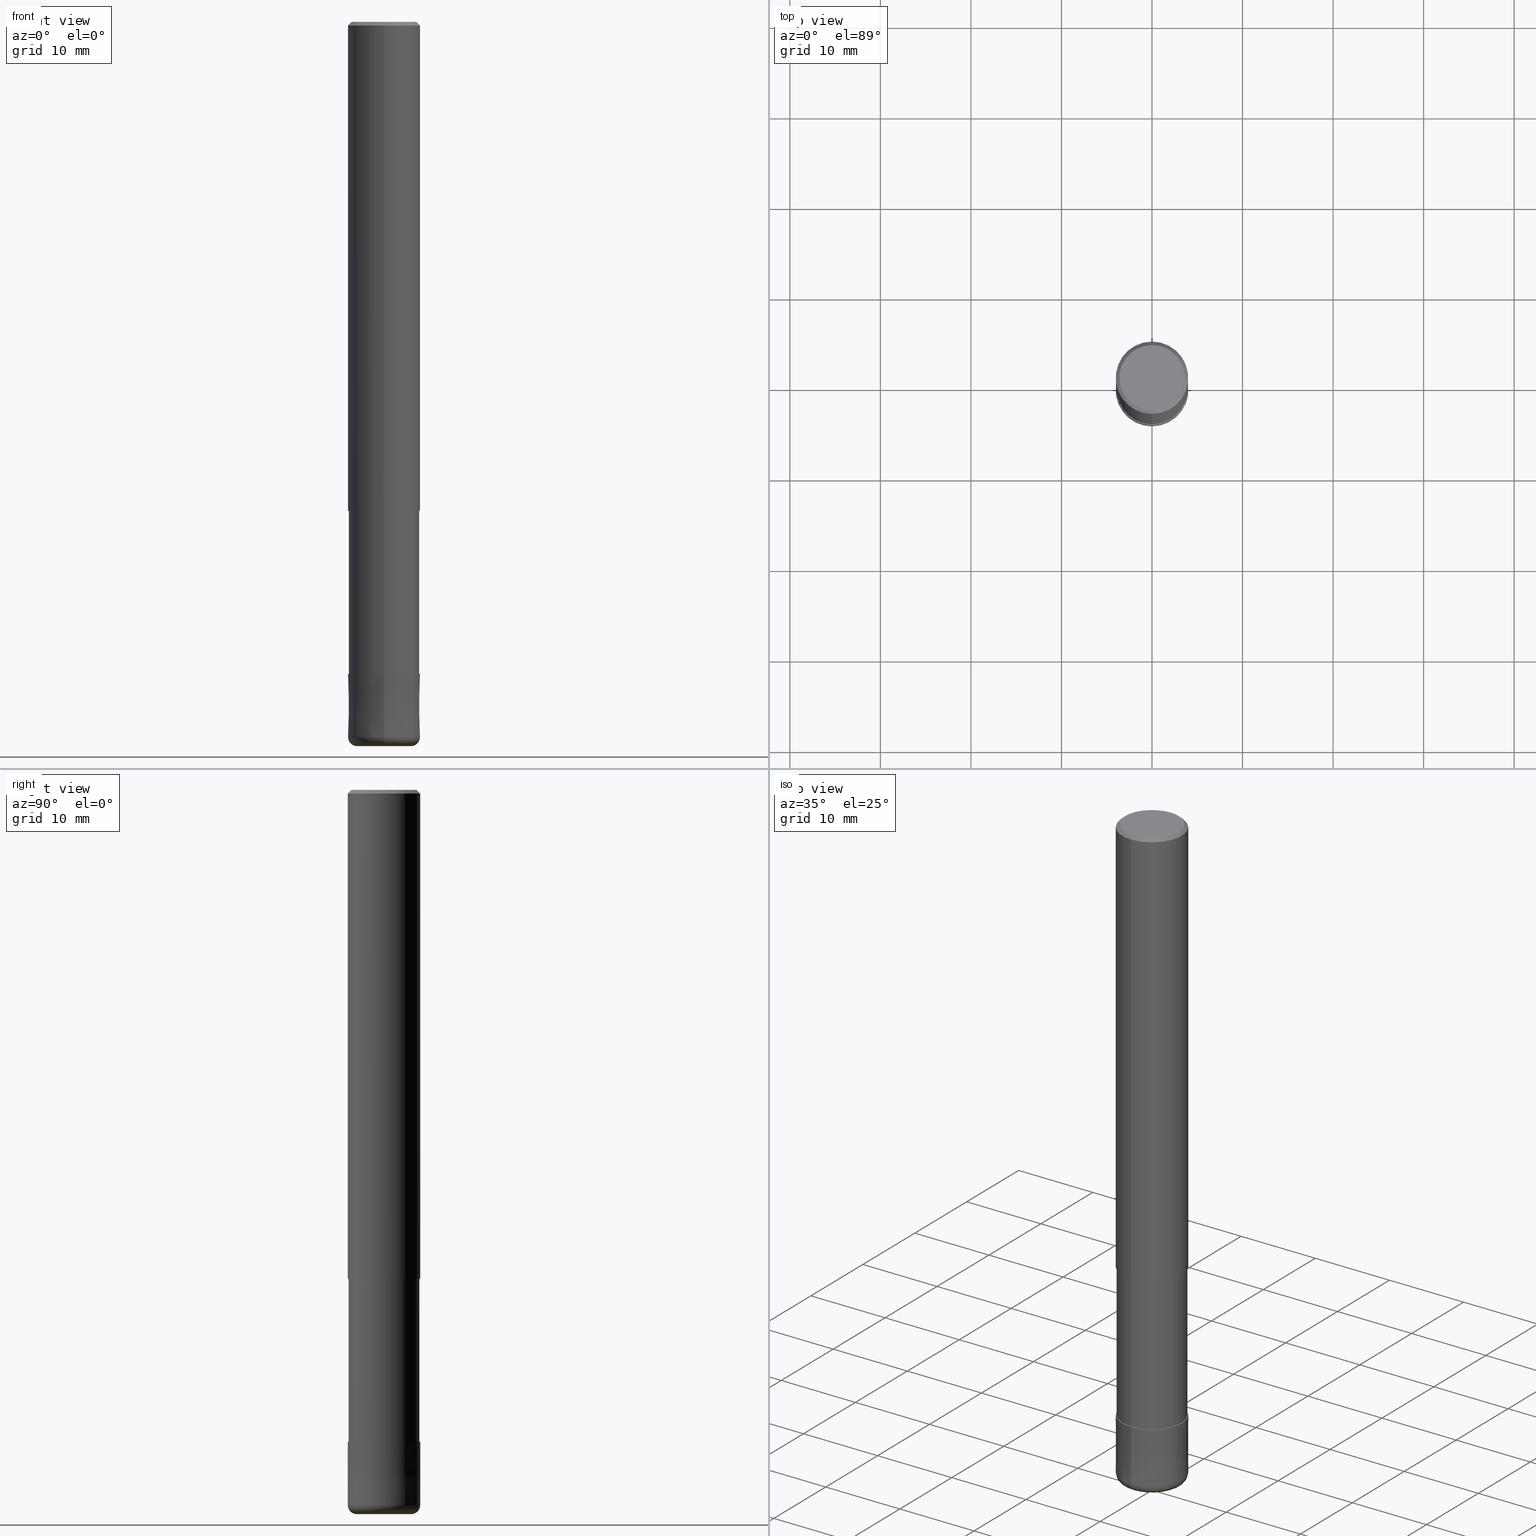
[diagram: canonical four-view strip — front | top / right | iso, engineering-drawing reading convention]
A machine part, canonical four-view strip (front | top / right | iso — engineering-drawing reading convention). The complete STEP part file that produces these views, byte-faithful:
ISO-10303-21;
HEADER;
FILE_DESCRIPTION(('no description'),'unknown implementation level');
FILE_NAME('HHRS6080-10-260-Huellk.stp','  ',('CIMSOURCE GmbH'),('CADClick - KiM GmbH - www.kimweb.de'),'unknown preprocess','ACIS','unknown authorization');
FILE_SCHEMA(('automotive_design'));
ENDSEC;
DATA;
#1=MECHANICAL_DESIGN_GEOMETRIC_PRESENTATION_REPRESENTATION(' ',(#14,#15,#16,#17,#18,#19,#20,#21,#22,#23,#24,#25,#26,#27,#28,#29,#30,#31,#32,#33,#34,#35,#36,#37,#38,#39,#40,#41,#42,#43,#44,#45,#46,#47,#48,#49,#50,#51,#52,#53,#54,#55,#56,#57,#58,#59,#60,#61,#62,#63,#64,#65,#66,#67,#68,#69,#70,#71,#72,#73,#74,#75,#76,#77,#78,#79,#80,#81,#82,#83,#84,#85,#86,#87,#88,#89,#90,#91,#92,#93,#94,#95,#96,#97),#10);
#2=PRODUCT_DEFINITION_CONTEXT('',#98,'design');
#3=APPLICATION_PROTOCOL_DEFINITION('INTERNATIONAL STANDARD','automotive_design',1994,#98);
#4=PRODUCT_CATEGORY_RELATIONSHIP('NONE','NONE',#99,#100);
#5=SHAPE_DEFINITION_REPRESENTATION(#101,#102);
#6=PRODUCT_DEFINITION_CONTEXT('',#103,'design');
#7=APPLICATION_PROTOCOL_DEFINITION('INTERNATIONAL STANDARD','automotive_design',1994,#103);
#8=PRODUCT_CATEGORY_RELATIONSHIP('NONE','NONE',#104,#105);
#9=SHAPE_DEFINITION_REPRESENTATION(#106,#107);
#10= (GEOMETRIC_REPRESENTATION_CONTEXT(3)GLOBAL_UNCERTAINTY_ASSIGNED_CONTEXT((#110))GLOBAL_UNIT_ASSIGNED_CONTEXT((#112,#113,#114))REPRESENTATION_CONTEXT('NONE','WORKSPACE'));
#14=STYLED_ITEM('',(#116),#117);
#15=STYLED_ITEM('',(#118),#119);
#16=STYLED_ITEM('',(#120),#121);
#17=STYLED_ITEM('',(#122),#123);
#18=STYLED_ITEM('',(#124),#125);
#19=STYLED_ITEM('',(#126),#127);
#20=STYLED_ITEM('',(#128),#129);
#21=STYLED_ITEM('',(#130),#131);
#22=STYLED_ITEM('',(#132),#133);
#23=STYLED_ITEM('',(#134),#135);
#24=STYLED_ITEM('',(#136),#137);
#25=STYLED_ITEM('',(#138),#139);
#26=STYLED_ITEM('',(#140),#141);
#27=STYLED_ITEM('',(#142),#143);
#28=STYLED_ITEM('',(#144),#145);
#29=STYLED_ITEM('',(#146),#147);
#30=STYLED_ITEM('',(#148),#149);
#31=STYLED_ITEM('',(#150),#151);
#32=STYLED_ITEM('',(#152),#153);
#33=STYLED_ITEM('',(#154),#155);
#34=STYLED_ITEM('',(#156),#157);
#35=STYLED_ITEM('',(#158),#159);
#36=STYLED_ITEM('',(#160),#161);
#37=STYLED_ITEM('',(#162),#163);
#38=STYLED_ITEM('',(#164),#165);
#39=STYLED_ITEM('',(#166),#167);
#40=STYLED_ITEM('',(#168),#169);
#41=STYLED_ITEM('',(#170),#171);
#42=STYLED_ITEM('',(#172),#173);
#43=STYLED_ITEM('',(#174),#175);
#44=STYLED_ITEM('',(#176),#177);
#45=STYLED_ITEM('',(#178),#179);
#46=STYLED_ITEM('',(#180),#181);
#47=STYLED_ITEM('',(#182),#183);
#48=STYLED_ITEM('',(#184),#185);
#49=STYLED_ITEM('',(#186),#187);
#50=STYLED_ITEM('',(#188),#189);
#51=STYLED_ITEM('',(#190),#191);
#52=STYLED_ITEM('',(#192),#193);
#53=STYLED_ITEM('',(#194),#195);
#54=STYLED_ITEM('',(#196),#197);
#55=STYLED_ITEM('',(#198),#199);
#56=STYLED_ITEM('',(#200),#201);
#57=STYLED_ITEM('',(#202),#203);
#58=STYLED_ITEM('',(#204),#205);
#59=STYLED_ITEM('',(#206),#207);
#60=STYLED_ITEM('',(#208),#209);
#61=STYLED_ITEM('',(#210),#211);
#62=STYLED_ITEM('',(#212),#213);
#63=STYLED_ITEM('',(#214),#215);
#64=STYLED_ITEM('',(#216),#217);
#65=STYLED_ITEM('',(#218),#219);
#66=STYLED_ITEM('',(#220),#221);
#67=STYLED_ITEM('',(#222),#223);
#68=STYLED_ITEM('',(#224),#225);
#69=STYLED_ITEM('',(#226),#227);
#70=STYLED_ITEM('',(#228),#229);
#71=STYLED_ITEM('',(#230),#231);
#72=STYLED_ITEM('',(#232),#233);
#73=STYLED_ITEM('',(#234),#235);
#74=STYLED_ITEM('',(#236),#237);
#75=STYLED_ITEM('',(#238),#239);
#76=STYLED_ITEM('',(#240),#241);
#77=STYLED_ITEM('',(#242),#243);
#78=STYLED_ITEM('',(#244),#245);
#79=STYLED_ITEM('',(#246),#247);
#80=STYLED_ITEM('',(#248),#249);
#81=STYLED_ITEM('',(#250),#251);
#82=STYLED_ITEM('',(#252),#253);
#83=STYLED_ITEM('',(#254),#255);
#84=STYLED_ITEM('',(#256),#257);
#85=STYLED_ITEM('',(#258),#259);
#86=STYLED_ITEM('',(#260),#261);
#87=STYLED_ITEM('',(#262),#263);
#88=STYLED_ITEM('',(#264),#265);
#89=STYLED_ITEM('',(#266),#267);
#90=STYLED_ITEM('',(#268),#269);
#91=STYLED_ITEM('',(#270),#271);
#92=STYLED_ITEM('',(#272),#273);
#93=STYLED_ITEM('',(#274),#275);
#94=STYLED_ITEM('',(#276),#277);
#95=STYLED_ITEM('',(#278),#279);
#96=STYLED_ITEM('',(#280),#281);
#97=STYLED_ITEM('',(#282),#283);
#98=APPLICATION_CONTEXT(' ');
#99=PRODUCT_CATEGORY('part','NONE');
#100=PRODUCT_RELATED_PRODUCT_CATEGORY('detail',' ',(#284));
#101=PRODUCT_DEFINITION_SHAPE('NONE','NONE',#285);
#102=ADVANCED_BREP_SHAPE_REPRESENTATION('1',(#257,#286),#10);
#103=APPLICATION_CONTEXT(' ');
#104=PRODUCT_CATEGORY('part','NONE');
#105=PRODUCT_RELATED_PRODUCT_CATEGORY('detail',' ',(#287));
#106=PRODUCT_DEFINITION_SHAPE('NONE','NONE',#288);
#107=ADVANCED_BREP_SHAPE_REPRESENTATION('2',(#173,#289),#10);
#110=UNCERTAINTY_MEASURE_WITH_UNIT(LENGTH_MEASURE(1.0E-006),#112,'','');
#112= (CONVERSION_BASED_UNIT('MILLIMETRE',#292)LENGTH_UNIT()NAMED_UNIT(#295));
#113= (NAMED_UNIT(#297)PLANE_ANGLE_UNIT()SI_UNIT($,.RADIAN.));
#114= (NAMED_UNIT(#297)SOLID_ANGLE_UNIT()SI_UNIT($,.STERADIAN.));
#116=PRESENTATION_STYLE_ASSIGNMENT((#303));
#117=EDGE_CURVE('',#209,#131,#304,.T.);
#118=PRESENTATION_STYLE_ASSIGNMENT((#305));
#119=EDGE_CURVE('',#235,#221,#306,.T.);
#120=PRESENTATION_STYLE_ASSIGNMENT((#307));
#121=VERTEX_POINT('',#308);
#122=PRESENTATION_STYLE_ASSIGNMENT((#309));
#123=EDGE_CURVE('',#181,#243,#310,.T.);
#124=PRESENTATION_STYLE_ASSIGNMENT((#311));
#125=ADVANCED_FACE('',(#312),#313,.T.);
#126=PRESENTATION_STYLE_ASSIGNMENT((#314));
#127=EDGE_CURVE('',#131,#181,#315,.T.);
#128=PRESENTATION_STYLE_ASSIGNMENT((#316));
#129=VERTEX_POINT('',#317);
#130=PRESENTATION_STYLE_ASSIGNMENT((#318));
#131=VERTEX_POINT('',#319);
#132=PRESENTATION_STYLE_ASSIGNMENT((#320));
#133=ADVANCED_FACE('',(#321),#322,.T.);
#134=PRESENTATION_STYLE_ASSIGNMENT((#323));
#135=EDGE_CURVE('',#237,#221,#324,.T.);
#136=PRESENTATION_STYLE_ASSIGNMENT((#325));
#137=EDGE_CURVE('',#217,#121,#326,.T.);
#138=PRESENTATION_STYLE_ASSIGNMENT((#327));
#139=ADVANCED_FACE('',(#328),#329,.T.);
#140=PRESENTATION_STYLE_ASSIGNMENT((#330));
#141=EDGE_CURVE('',#253,#203,#331,.T.);
#142=PRESENTATION_STYLE_ASSIGNMENT((#332));
#143=ADVANCED_FACE('',(#333),#334,.T.);
#144=PRESENTATION_STYLE_ASSIGNMENT((#335));
#145=VERTEX_POINT('',#336);
#146=PRESENTATION_STYLE_ASSIGNMENT((#337));
#147=EDGE_CURVE('',#273,#129,#338,.T.);
#148=PRESENTATION_STYLE_ASSIGNMENT((#339));
#149=ADVANCED_FACE('',(#340,#341),#342,.T.);
#150=PRESENTATION_STYLE_ASSIGNMENT((#343));
#151=EDGE_CURVE('',#221,#235,#344,.T.);
#152=PRESENTATION_STYLE_ASSIGNMENT((#345));
#153=EDGE_CURVE('',#121,#281,#346,.T.);
#154=PRESENTATION_STYLE_ASSIGNMENT((#347));
#155=ADVANCED_FACE('',(#348),#349,.T.);
#156=PRESENTATION_STYLE_ASSIGNMENT((#350));
#157=EDGE_CURVE('',#129,#241,#351,.T.);
#158=PRESENTATION_STYLE_ASSIGNMENT((#352));
#159=VERTEX_POINT('',#353);
#160=PRESENTATION_STYLE_ASSIGNMENT((#354));
#161=EDGE_CURVE('',#235,#253,#355,.T.);
#162=PRESENTATION_STYLE_ASSIGNMENT((#356));
#163=ADVANCED_FACE('',(#357),#358,.T.);
#164=PRESENTATION_STYLE_ASSIGNMENT((#359));
#165=EDGE_CURVE('',#227,#271,#360,.T.);
#166=PRESENTATION_STYLE_ASSIGNMENT((#361));
#167=ADVANCED_FACE('',(#362),#363,.T.);
#168=PRESENTATION_STYLE_ASSIGNMENT((#364));
#169=EDGE_CURVE('',#145,#131,#365,.T.);
#170=PRESENTATION_STYLE_ASSIGNMENT((#366));
#171=EDGE_CURVE('',#177,#273,#367,.T.);
#172=PRESENTATION_STYLE_ASSIGNMENT((#368));
#173=MANIFOLD_SOLID_BREP('2',#369);
#174=PRESENTATION_STYLE_ASSIGNMENT((#370));
#175=ADVANCED_FACE('',(#371),#372,.T.);
#176=PRESENTATION_STYLE_ASSIGNMENT((#373));
#177=VERTEX_POINT('',#374);
#178=PRESENTATION_STYLE_ASSIGNMENT((#375));
#179=EDGE_CURVE('',#243,#209,#376,.T.);
#180=PRESENTATION_STYLE_ASSIGNMENT((#377));
#181=VERTEX_POINT('',#378);
#182=PRESENTATION_STYLE_ASSIGNMENT((#379));
#183=EDGE_CURVE('',#265,#227,#380,.T.);
#184=PRESENTATION_STYLE_ASSIGNMENT((#381));
#185=VERTEX_POINT('',#382);
#186=PRESENTATION_STYLE_ASSIGNMENT((#383));
#187=EDGE_CURVE('',#181,#131,#384,.T.);
#188=PRESENTATION_STYLE_ASSIGNMENT((#385));
#189=EDGE_CURVE('',#201,#145,#386,.T.);
#190=PRESENTATION_STYLE_ASSIGNMENT((#387));
#191=EDGE_CURVE('',#185,#237,#388,.T.);
#192=PRESENTATION_STYLE_ASSIGNMENT((#389));
#193=ADVANCED_FACE('',(#390),#391,.T.);
#194=PRESENTATION_STYLE_ASSIGNMENT((#392));
#195=EDGE_CURVE('',#185,#203,#393,.T.);
#196=PRESENTATION_STYLE_ASSIGNMENT((#394));
#197=EDGE_CURVE('',#159,#265,#395,.T.);
#198=PRESENTATION_STYLE_ASSIGNMENT((#396));
#199=ADVANCED_FACE('',(#397,#398),#399,.T.);
#200=PRESENTATION_STYLE_ASSIGNMENT((#400));
#201=VERTEX_POINT('',#401);
#202=PRESENTATION_STYLE_ASSIGNMENT((#402));
#203=VERTEX_POINT('',#403);
#204=PRESENTATION_STYLE_ASSIGNMENT((#404));
#205=EDGE_CURVE('',#181,#201,#405,.T.);
#206=PRESENTATION_STYLE_ASSIGNMENT((#406));
#207=ADVANCED_FACE('',(#407),#408,.F.);
#208=PRESENTATION_STYLE_ASSIGNMENT((#409));
#209=VERTEX_POINT('',#410);
#210=PRESENTATION_STYLE_ASSIGNMENT((#411));
#211=ADVANCED_FACE('',(#412),#413,.F.);
#212=PRESENTATION_STYLE_ASSIGNMENT((#414));
#213=VERTEX_POINT('',#415);
#214=PRESENTATION_STYLE_ASSIGNMENT((#416));
#215=EDGE_CURVE('',#271,#227,#417,.T.);
#216=PRESENTATION_STYLE_ASSIGNMENT((#418));
#217=VERTEX_POINT('',#419);
#218=PRESENTATION_STYLE_ASSIGNMENT((#420));
#219=ADVANCED_FACE('',(#421),#422,.T.);
#220=PRESENTATION_STYLE_ASSIGNMENT((#423));
#221=VERTEX_POINT('',#424);
#222=PRESENTATION_STYLE_ASSIGNMENT((#425));
#223=ADVANCED_FACE('',(#426),#427,.T.);
#224=PRESENTATION_STYLE_ASSIGNMENT((#428));
#225=EDGE_CURVE('',#241,#177,#429,.T.);
#226=PRESENTATION_STYLE_ASSIGNMENT((#430));
#227=VERTEX_POINT('',#431);
#228=PRESENTATION_STYLE_ASSIGNMENT((#432));
#229=EDGE_CURVE('',#271,#159,#433,.T.);
#230=PRESENTATION_STYLE_ASSIGNMENT((#434));
#231=EDGE_CURVE('',#265,#159,#435,.T.);
#232=PRESENTATION_STYLE_ASSIGNMENT((#436));
#233=ADVANCED_FACE('',(#437,#438),#439,.T.);
#234=PRESENTATION_STYLE_ASSIGNMENT((#440));
#235=VERTEX_POINT('',#441);
#236=PRESENTATION_STYLE_ASSIGNMENT((#442));
#237=VERTEX_POINT('',#443);
#238=PRESENTATION_STYLE_ASSIGNMENT((#444));
#239=EDGE_CURVE('',#237,#253,#445,.T.);
#240=PRESENTATION_STYLE_ASSIGNMENT((#446));
#241=VERTEX_POINT('',#447);
#242=PRESENTATION_STYLE_ASSIGNMENT((#448));
#243=VERTEX_POINT('',#449);
#244=PRESENTATION_STYLE_ASSIGNMENT((#450));
#245=EDGE_CURVE('',#177,#241,#451,.T.);
#246=PRESENTATION_STYLE_ASSIGNMENT((#452));
#247=EDGE_CURVE('',#203,#185,#453,.T.);
#248=PRESENTATION_STYLE_ASSIGNMENT((#454));
#249=EDGE_CURVE('',#145,#201,#455,.T.);
#250=PRESENTATION_STYLE_ASSIGNMENT((#456));
#251=EDGE_CURVE('',#217,#213,#457,.T.);
#252=PRESENTATION_STYLE_ASSIGNMENT((#458));
#253=VERTEX_POINT('',#459);
#254=PRESENTATION_STYLE_ASSIGNMENT((#460));
#255=EDGE_CURVE('',#213,#217,#461,.T.);
#256=PRESENTATION_STYLE_ASSIGNMENT((#462));
#257=MANIFOLD_SOLID_BREP('1',#463);
#258=PRESENTATION_STYLE_ASSIGNMENT((#464));
#259=EDGE_CURVE('',#253,#237,#465,.T.);
#260=PRESENTATION_STYLE_ASSIGNMENT((#466));
#261=EDGE_CURVE('',#209,#243,#467,.T.);
#262=PRESENTATION_STYLE_ASSIGNMENT((#468));
#263=ADVANCED_FACE('',(#469,#470),#471,.T.);
#264=PRESENTATION_STYLE_ASSIGNMENT((#472));
#265=VERTEX_POINT('',#473);
#266=PRESENTATION_STYLE_ASSIGNMENT((#474));
#267=EDGE_CURVE('',#281,#213,#475,.T.);
#268=PRESENTATION_STYLE_ASSIGNMENT((#476));
#269=ADVANCED_FACE('',(#477),#478,.T.);
#270=PRESENTATION_STYLE_ASSIGNMENT((#479));
#271=VERTEX_POINT('',#480);
#272=PRESENTATION_STYLE_ASSIGNMENT((#481));
#273=VERTEX_POINT('',#482);
#274=PRESENTATION_STYLE_ASSIGNMENT((#483));
#275=ADVANCED_FACE('',(#484),#485,.T.);
#276=PRESENTATION_STYLE_ASSIGNMENT((#486));
#277=EDGE_CURVE('',#281,#121,#487,.T.);
#278=PRESENTATION_STYLE_ASSIGNMENT((#488));
#279=ADVANCED_FACE('',(#489),#490,.T.);
#280=PRESENTATION_STYLE_ASSIGNMENT((#491));
#281=VERTEX_POINT('',#492);
#282=PRESENTATION_STYLE_ASSIGNMENT((#493));
#283=EDGE_CURVE('',#129,#273,#494,.T.);
#284=PRODUCT('1','1','PART-1-DESC',(#495));
#285=PRODUCT_DEFINITION('NONE','NONE',#496,#2);
#286=AXIS2_PLACEMENT_3D('',#497,#498,#499);
#287=PRODUCT('2','2','PART-2-DESC',(#500));
#288=PRODUCT_DEFINITION('NONE','NONE',#501,#6);
#289=AXIS2_PLACEMENT_3D('',#502,#503,#504);
#292=LENGTH_MEASURE_WITH_UNIT(LENGTH_MEASURE(1.0),#505);
#295=DIMENSIONAL_EXPONENTS(1.0,0.0,0.0,0.0,0.0,0.0,0.0);
#297=DIMENSIONAL_EXPONENTS(0.0,0.0,0.0,0.0,0.0,0.0,0.0);
#303=CURVE_STYLE('',#506,POSITIVE_LENGTH_MEASURE(1.0E-006),#507);
#304=LINE('',#508,#509);
#305=CURVE_STYLE('',#510,POSITIVE_LENGTH_MEASURE(1.0E-006),#511);
#306=CIRCLE('',#512,4.0);
#307=POINT_STYLE(' ',#513,POSITIVE_LENGTH_MEASURE(1.0E-006),#514);
#308=CARTESIAN_POINT('',(0.0,3.90495,-72.0));
#309=CURVE_STYLE('',#515,POSITIVE_LENGTH_MEASURE(1.0E-006),#516);
#310=LINE('',#517,#518);
#311=SURFACE_STYLE_USAGE(.BOTH.,#519);
#312=FACE_OUTER_BOUND('',#520,.T.);
#313=CONICAL_SURFACE('',#521,3.8,0.78539816339745);
#314=CURVE_STYLE('',#522,POSITIVE_LENGTH_MEASURE(1.0E-006),#523);
#315=CIRCLE('',#524,4.0);
#316=POINT_STYLE(' ',#525,POSITIVE_LENGTH_MEASURE(1.0E-006),#526);
#317=CARTESIAN_POINT('',(2.20429143688028E-016,-1.8,-80.0));
#318=POINT_STYLE(' ',#527,POSITIVE_LENGTH_MEASURE(1.0E-006),#528);
#319=CARTESIAN_POINT('',(0.0,4.0,-79.0));
#320=SURFACE_STYLE_USAGE(.BOTH.,#529);
#321=FACE_OUTER_BOUND('',#530,.T.);
#322=CONICAL_SURFACE('',#531,3.8,0.78539816339745);
#323=CURVE_STYLE('',#532,POSITIVE_LENGTH_MEASURE(1.0E-006),#533);
#324=LINE('',#534,#535);
#325=CURVE_STYLE('',#536,POSITIVE_LENGTH_MEASURE(1.0E-006),#537);
#326=LINE('',#538,#539);
#327=SURFACE_STYLE_USAGE(.BOTH.,#540);
#328=FACE_OUTER_BOUND('',#541,.T.);
#329=TOROIDAL_SURFACE('',#542,3.0,1.0);
#330=CURVE_STYLE('',#543,POSITIVE_LENGTH_MEASURE(1.0E-006),#544);
#331=LINE('',#545,#546);
#332=SURFACE_STYLE_USAGE(.BOTH.,#547);
#333=FACE_OUTER_BOUND('',#548,.T.);
#334=CONICAL_SURFACE('',#549,3.99995,1.42857142847726E-005);
#335=POINT_STYLE(' ',#550,POSITIVE_LENGTH_MEASURE(1.0E-006),#551);
#336=CARTESIAN_POINT('',(0.0,3.0,-80.0));
#337=CURVE_STYLE('',#552,POSITIVE_LENGTH_MEASURE(1.0E-006),#553);
#338=CIRCLE('',#554,1.8);
#339=SURFACE_STYLE_USAGE(.BOTH.,#555);
#340=FACE_OUTER_BOUND('',#556,.T.);
#341=FACE_BOUND('',#557,.T.);
#342=PLANE('',#558);
#343=CURVE_STYLE('',#559,POSITIVE_LENGTH_MEASURE(1.0E-006),#560);
#344=CIRCLE('',#561,4.0);
#345=CURVE_STYLE('',#562,POSITIVE_LENGTH_MEASURE(1.0E-006),#563);
#346=CIRCLE('',#564,3.90495);
#347=SURFACE_STYLE_USAGE(.BOTH.,#565);
#348=FACE_OUTER_BOUND('',#566,.T.);
#349=CONICAL_SURFACE('',#567,3.99995,1.42857142847726E-005);
#350=CURVE_STYLE('',#568,POSITIVE_LENGTH_MEASURE(1.0E-006),#569);
#351=LINE('',#570,#571);
#352=POINT_STYLE(' ',#572,POSITIVE_LENGTH_MEASURE(1.0E-006),#573);
#353=CARTESIAN_POINT('',(0.0,1.8,-79.9));
#354=CURVE_STYLE('',#574,POSITIVE_LENGTH_MEASURE(1.0E-006),#575);
#355=LINE('',#576,#577);
#356=SURFACE_STYLE_USAGE(.BOTH.,#578);
#357=FACE_OUTER_BOUND('',#579,.T.);
#358=TOROIDAL_SURFACE('',#580,3.0,1.0);
#359=CURVE_STYLE('',#581,POSITIVE_LENGTH_MEASURE(1.0E-006),#582);
#360=CIRCLE('',#583,1.8);
#361=SURFACE_STYLE_USAGE(.BOTH.,#584);
#362=FACE_OUTER_BOUND('',#585,.T.);
#363=CYLINDRICAL_SURFACE('',#586,1.8);
#364=CURVE_STYLE('',#587,POSITIVE_LENGTH_MEASURE(1.0E-006),#588);
#365=CIRCLE('',#589,1.0);
#366=CURVE_STYLE('',#590,POSITIVE_LENGTH_MEASURE(1.0E-006),#591);
#367=LINE('',#592,#593);
#368=SURFACE_STYLE_USAGE(.BOTH.,#594);
#369=CLOSED_SHELL('',(#211,#163,#143,#149,#155,#139,#199,#207));
#370=SURFACE_STYLE_USAGE(.BOTH.,#595);
#371=FACE_OUTER_BOUND('',#596,.T.);
#372=PLANE('',#597);
#373=POINT_STYLE(' ',#598,POSITIVE_LENGTH_MEASURE(1.0E-006),#599);
#374=CARTESIAN_POINT('',(0.0,1.8,-72.0));
#375=CURVE_STYLE('',#600,POSITIVE_LENGTH_MEASURE(1.0E-006),#601);
#376=CIRCLE('',#602,3.9999);
#377=POINT_STYLE(' ',#603,POSITIVE_LENGTH_MEASURE(1.0E-006),#604);
#378=CARTESIAN_POINT('',(4.89842541528951E-016,-4.0,-79.0));
#379=CURVE_STYLE('',#605,POSITIVE_LENGTH_MEASURE(1.0E-006),#606);
#380=LINE('',#607,#608);
#381=POINT_STYLE(' ',#609,POSITIVE_LENGTH_MEASURE(1.0E-006),#610);
#382=CARTESIAN_POINT('',(0.0,3.6,0.0));
#383=CURVE_STYLE('',#611,POSITIVE_LENGTH_MEASURE(1.0E-006),#612);
#384=CIRCLE('',#613,4.0);
#385=CURVE_STYLE('',#614,POSITIVE_LENGTH_MEASURE(1.0E-006),#615);
#386=CIRCLE('',#616,3.0);
#387=CURVE_STYLE('',#617,POSITIVE_LENGTH_MEASURE(1.0E-006),#618);
#388=LINE('',#619,#620);
#389=SURFACE_STYLE_USAGE(.BOTH.,#621);
#390=FACE_OUTER_BOUND('',#622,.T.);
#391=CYLINDRICAL_SURFACE('',#623,3.90495);
#392=CURVE_STYLE('',#624,POSITIVE_LENGTH_MEASURE(1.0E-006),#625);
#393=CIRCLE('',#626,3.6);
#394=CURVE_STYLE('',#627,POSITIVE_LENGTH_MEASURE(1.0E-006),#628);
#395=CIRCLE('',#629,1.8);
#396=SURFACE_STYLE_USAGE(.BOTH.,#630);
#397=FACE_BOUND('',#631,.T.);
#398=FACE_OUTER_BOUND('',#632,.T.);
#399=PLANE('',#633);
#400=POINT_STYLE(' ',#634,POSITIVE_LENGTH_MEASURE(1.0E-006),#635);
#401=CARTESIAN_POINT('',(3.67381906146713E-016,-3.0,-80.0));
#402=POINT_STYLE(' ',#636,POSITIVE_LENGTH_MEASURE(1.0E-006),#637);
#403=CARTESIAN_POINT('',(4.40858287376056E-016,-3.6,0.0));
#404=CURVE_STYLE('',#638,POSITIVE_LENGTH_MEASURE(1.0E-006),#639);
#405=CIRCLE('',#640,1.0);
#406=SURFACE_STYLE_USAGE(.BOTH.,#641);
#407=FACE_OUTER_BOUND('',#642,.T.);
#408=CYLINDRICAL_SURFACE('',#643,1.8);
#409=POINT_STYLE(' ',#644,POSITIVE_LENGTH_MEASURE(1.0E-006),#645);
#410=CARTESIAN_POINT('',(0.0,3.9999,-72.0));
#411=SURFACE_STYLE_USAGE(.BOTH.,#646);
#412=FACE_OUTER_BOUND('',#647,.T.);
#413=CYLINDRICAL_SURFACE('',#648,1.8);
#414=POINT_STYLE(' ',#649,POSITIVE_LENGTH_MEASURE(1.0E-006),#650);
#415=CARTESIAN_POINT('',(4.78202658135869E-016,-3.90495,-54.0));
#416=CURVE_STYLE('',#651,POSITIVE_LENGTH_MEASURE(1.0E-006),#652);
#417=CIRCLE('',#653,1.8);
#418=POINT_STYLE(' ',#654,POSITIVE_LENGTH_MEASURE(1.0E-006),#655);
#419=CARTESIAN_POINT('',(0.0,3.90495,-54.0));
#420=SURFACE_STYLE_USAGE(.BOTH.,#656);
#421=FACE_OUTER_BOUND('',#657,.T.);
#422=CYLINDRICAL_SURFACE('',#658,4.0);
#423=POINT_STYLE(' ',#659,POSITIVE_LENGTH_MEASURE(1.0E-006),#660);
#424=CARTESIAN_POINT('',(0.0,4.0,-54.0));
#425=SURFACE_STYLE_USAGE(.BOTH.,#661);
#426=FACE_OUTER_BOUND('',#662,.T.);
#427=PLANE('',#663);
#428=CURVE_STYLE('',#664,POSITIVE_LENGTH_MEASURE(1.0E-006),#665);
#429=CIRCLE('',#666,1.8);
#430=POINT_STYLE(' ',#667,POSITIVE_LENGTH_MEASURE(1.0E-006),#668);
#431=CARTESIAN_POINT('',(2.20429143688028E-016,-1.8,-72.0));
#432=CURVE_STYLE('',#669,POSITIVE_LENGTH_MEASURE(1.0E-006),#670);
#433=LINE('',#671,#672);
#434=CURVE_STYLE('',#673,POSITIVE_LENGTH_MEASURE(1.0E-006),#674);
#435=CIRCLE('',#675,1.8);
#436=SURFACE_STYLE_USAGE(.BOTH.,#676);
#437=FACE_OUTER_BOUND('',#677,.T.);
#438=FACE_BOUND('',#678,.T.);
#439=PLANE('',#679);
#440=POINT_STYLE(' ',#680,POSITIVE_LENGTH_MEASURE(1.0E-006),#681);
#441=CARTESIAN_POINT('',(4.89842541528951E-016,-4.0,-54.0));
#442=POINT_STYLE(' ',#682,POSITIVE_LENGTH_MEASURE(1.0E-006),#683);
#443=CARTESIAN_POINT('',(0.0,4.0,-0.399999999999999));
#444=CURVE_STYLE('',#684,POSITIVE_LENGTH_MEASURE(1.0E-006),#685);
#445=CIRCLE('',#686,4.0);
#446=POINT_STYLE(' ',#687,POSITIVE_LENGTH_MEASURE(1.0E-006),#688);
#447=CARTESIAN_POINT('',(2.20429143688028E-016,-1.8,-72.0));
#448=POINT_STYLE(' ',#689,POSITIVE_LENGTH_MEASURE(1.0E-006),#690);
#449=CARTESIAN_POINT('',(4.89830295465413E-016,-3.9999,-72.0));
#450=CURVE_STYLE('',#691,POSITIVE_LENGTH_MEASURE(1.0E-006),#692);
#451=CIRCLE('',#693,1.8);
#452=CURVE_STYLE('',#694,POSITIVE_LENGTH_MEASURE(1.0E-006),#695);
#453=CIRCLE('',#696,3.6);
#454=CURVE_STYLE('',#697,POSITIVE_LENGTH_MEASURE(1.0E-006),#698);
#455=CIRCLE('',#699,3.0);
#456=CURVE_STYLE('',#700,POSITIVE_LENGTH_MEASURE(1.0E-006),#701);
#457=CIRCLE('',#702,3.90495);
#458=POINT_STYLE(' ',#703,POSITIVE_LENGTH_MEASURE(1.0E-006),#704);
#459=CARTESIAN_POINT('',(4.89842541528951E-016,-4.0,-0.399999999999999));
#460=CURVE_STYLE('',#705,POSITIVE_LENGTH_MEASURE(1.0E-006),#706);
#461=CIRCLE('',#707,3.90495);
#462=SURFACE_STYLE_USAGE(.BOTH.,#708);
#463=CLOSED_SHELL('',(#279,#193,#269,#125,#233,#223,#133,#219,#275,#263,#167,#175));
#464=CURVE_STYLE('',#709,POSITIVE_LENGTH_MEASURE(1.0E-006),#710);
#465=CIRCLE('',#711,4.0);
#466=CURVE_STYLE('',#712,POSITIVE_LENGTH_MEASURE(1.0E-006),#713);
#467=CIRCLE('',#714,3.9999);
#468=SURFACE_STYLE_USAGE(.BOTH.,#715);
#469=FACE_BOUND('',#716,.T.);
#470=FACE_OUTER_BOUND('',#717,.T.);
#471=PLANE('',#718);
#472=POINT_STYLE(' ',#719,POSITIVE_LENGTH_MEASURE(1.0E-006),#720);
#473=CARTESIAN_POINT('',(2.20429143688028E-016,-1.8,-79.9));
#474=CURVE_STYLE('',#721,POSITIVE_LENGTH_MEASURE(1.0E-006),#722);
#475=LINE('',#723,#724);
#476=SURFACE_STYLE_USAGE(.BOTH.,#725);
#477=FACE_OUTER_BOUND('',#726,.T.);
#478=CYLINDRICAL_SURFACE('',#727,4.0);
#479=POINT_STYLE(' ',#728,POSITIVE_LENGTH_MEASURE(1.0E-006),#729);
#480=CARTESIAN_POINT('',(0.0,1.8,-72.0));
#481=POINT_STYLE(' ',#730,POSITIVE_LENGTH_MEASURE(1.0E-006),#731);
#482=CARTESIAN_POINT('',(0.0,1.8,-80.0));
#483=SURFACE_STYLE_USAGE(.BOTH.,#732);
#484=FACE_OUTER_BOUND('',#733,.T.);
#485=CYLINDRICAL_SURFACE('',#734,3.90495);
#486=CURVE_STYLE('',#735,POSITIVE_LENGTH_MEASURE(1.0E-006),#736);
#487=CIRCLE('',#737,3.90495);
#488=SURFACE_STYLE_USAGE(.BOTH.,#738);
#489=FACE_OUTER_BOUND('',#739,.T.);
#490=CYLINDRICAL_SURFACE('',#740,1.8);
#491=POINT_STYLE(' ',#741,POSITIVE_LENGTH_MEASURE(1.0E-006),#742);
#492=CARTESIAN_POINT('',(4.78202658135869E-016,-3.90495,-72.0));
#493=CURVE_STYLE('',#743,POSITIVE_LENGTH_MEASURE(1.0E-006),#744);
#494=CIRCLE('',#745,1.8);
#495=PRODUCT_CONTEXT('',#98,'mechanical');
#496=PRODUCT_DEFINITION_FORMATION_WITH_SPECIFIED_SOURCE(' ','NONE',#284,.NOT_KNOWN.);
#497=CARTESIAN_POINT('',(0.0,0.0,0.0));
#498=DIRECTION('',(0.0,0.0,1.0));
#499=DIRECTION('',(1.0,0.0,0.0));
#500=PRODUCT_CONTEXT('',#103,'mechanical');
#501=PRODUCT_DEFINITION_FORMATION_WITH_SPECIFIED_SOURCE(' ','NONE',#287,.NOT_KNOWN.);
#502=CARTESIAN_POINT('',(0.0,0.0,0.0));
#503=DIRECTION('',(0.0,0.0,1.0));
#504=DIRECTION('',(1.0,0.0,0.0));
#505= (NAMED_UNIT(#295)LENGTH_UNIT()SI_UNIT(.MILLI.,.METRE.));
#506=DRAUGHTING_PRE_DEFINED_CURVE_FONT('continuous');
#507=COLOUR_RGB('',0.800000011920929,0.800000011920929,0.800000011920929);
#508=CARTESIAN_POINT('',(-4.89836418497182E-016,3.99995,-75.5));
#509=VECTOR('',#747,1.0);
#510=DRAUGHTING_PRE_DEFINED_CURVE_FONT('continuous');
#511=COLOUR_RGB('',0.498039215803146,0.498039215803146,0.498039215803146);
#512=AXIS2_PLACEMENT_3D('',#748,#749,#750);
#513=PRE_DEFINED_MARKER('');
#514=COLOUR_RGB('',0.498039215803146,0.498039215803146,0.498039215803146);
#515=DRAUGHTING_PRE_DEFINED_CURVE_FONT('continuous');
#516=COLOUR_RGB('',0.800000011920929,0.800000011920929,0.800000011920929);
#517=CARTESIAN_POINT('',(4.89836418497182E-016,-3.99995,-75.5));
#518=VECTOR('',#751,1.0);
#519=SURFACE_SIDE_STYLE('',(#752));
#520=EDGE_LOOP('',(#753,#754,#755,#756));
#521=AXIS2_PLACEMENT_3D('',#757,#758,#759);
#522=DRAUGHTING_PRE_DEFINED_CURVE_FONT('continuous');
#523=COLOUR_RGB('',0.800000011920929,0.800000011920929,0.800000011920929);
#524=AXIS2_PLACEMENT_3D('',#760,#761,#762);
#525=PRE_DEFINED_MARKER('');
#526=COLOUR_RGB('',0.800000011920929,0.800000011920929,0.800000011920929);
#527=PRE_DEFINED_MARKER('');
#528=COLOUR_RGB('',0.800000011920929,0.800000011920929,0.800000011920929);
#529=SURFACE_SIDE_STYLE('',(#763));
#530=EDGE_LOOP('',(#764,#765,#766,#767));
#531=AXIS2_PLACEMENT_3D('',#768,#769,#770);
#532=DRAUGHTING_PRE_DEFINED_CURVE_FONT('continuous');
#533=COLOUR_RGB('',0.498039215803146,0.498039215803146,0.498039215803146);
#534=CARTESIAN_POINT('',(-4.89842541528951E-016,4.0,-27.2));
#535=VECTOR('',#771,1.0);
#536=DRAUGHTING_PRE_DEFINED_CURVE_FONT('continuous');
#537=COLOUR_RGB('',0.498039215803146,0.498039215803146,0.498039215803146);
#538=CARTESIAN_POINT('',(-4.78202658135869E-016,3.90495,-63.0));
#539=VECTOR('',#772,1.0);
#540=SURFACE_SIDE_STYLE('',(#773));
#541=EDGE_LOOP('',(#774,#775,#776,#777));
#542=AXIS2_PLACEMENT_3D('',#778,#779,#780);
#543=DRAUGHTING_PRE_DEFINED_CURVE_FONT('continuous');
#544=COLOUR_RGB('',0.498039215803146,0.498039215803146,0.498039215803146);
#545=CARTESIAN_POINT('',(4.65350414452503E-016,-3.8,-0.200000000000003));
#546=VECTOR('',#781,1.0);
#547=SURFACE_SIDE_STYLE('',(#782));
#548=EDGE_LOOP('',(#783,#784,#785,#786));
#549=AXIS2_PLACEMENT_3D('',#787,#788,#789);
#550=PRE_DEFINED_MARKER('');
#551=COLOUR_RGB('',0.800000011920929,0.800000011920929,0.800000011920929);
#552=DRAUGHTING_PRE_DEFINED_CURVE_FONT('continuous');
#553=COLOUR_RGB('',0.800000011920929,0.800000011920929,0.800000011920929);
#554=AXIS2_PLACEMENT_3D('',#790,#791,#792);
#555=SURFACE_SIDE_STYLE('',(#793));
#556=EDGE_LOOP('',(#794,#795));
#557=EDGE_LOOP('',(#796,#797));
#558=AXIS2_PLACEMENT_3D('',#798,#799,#800);
#559=DRAUGHTING_PRE_DEFINED_CURVE_FONT('continuous');
#560=COLOUR_RGB('',0.498039215803146,0.498039215803146,0.498039215803146);
#561=AXIS2_PLACEMENT_3D('',#801,#802,#803);
#562=DRAUGHTING_PRE_DEFINED_CURVE_FONT('continuous');
#563=COLOUR_RGB('',0.498039215803146,0.498039215803146,0.498039215803146);
#564=AXIS2_PLACEMENT_3D('',#804,#805,#806);
#565=SURFACE_SIDE_STYLE('',(#807));
#566=EDGE_LOOP('',(#808,#809,#810,#811));
#567=AXIS2_PLACEMENT_3D('',#812,#813,#814);
#568=DRAUGHTING_PRE_DEFINED_CURVE_FONT('continuous');
#569=COLOUR_RGB('',0.800000011920929,0.800000011920929,0.800000011920929);
#570=CARTESIAN_POINT('',(2.20429143688028E-016,-1.8,-76.0));
#571=VECTOR('',#815,1.0);
#572=PRE_DEFINED_MARKER('');
#573=COLOUR_RGB('',0.498039215803146,0.498039215803146,0.498039215803146);
#574=DRAUGHTING_PRE_DEFINED_CURVE_FONT('continuous');
#575=COLOUR_RGB('',0.498039215803146,0.498039215803146,0.498039215803146);
#576=CARTESIAN_POINT('',(4.89842541528951E-016,-4.0,-27.2));
#577=VECTOR('',#816,1.0);
#578=SURFACE_SIDE_STYLE('',(#817));
#579=EDGE_LOOP('',(#818,#819,#820,#821));
#580=AXIS2_PLACEMENT_3D('',#822,#823,#824);
#581=DRAUGHTING_PRE_DEFINED_CURVE_FONT('continuous');
#582=COLOUR_RGB('',0.498039215803146,0.498039215803146,0.498039215803146);
#583=AXIS2_PLACEMENT_3D('',#825,#826,#827);
#584=SURFACE_SIDE_STYLE('',(#828));
#585=EDGE_LOOP('',(#829,#830,#831,#832));
#586=AXIS2_PLACEMENT_3D('',#833,#834,#835);
#587=DRAUGHTING_PRE_DEFINED_CURVE_FONT('continuous');
#588=COLOUR_RGB('',0.800000011920929,0.800000011920929,0.800000011920929);
#589=AXIS2_PLACEMENT_3D('',#836,#837,#838);
#590=DRAUGHTING_PRE_DEFINED_CURVE_FONT('continuous');
#591=COLOUR_RGB('',0.800000011920929,0.800000011920929,0.800000011920929);
#592=CARTESIAN_POINT('',(-2.20429143688028E-016,1.8,-76.0));
#593=VECTOR('',#839,1.0);
#594=SURFACE_SIDE_STYLE('',(#840));
#595=SURFACE_SIDE_STYLE('',(#841));
#596=EDGE_LOOP('',(#842,#843));
#597=AXIS2_PLACEMENT_3D('',#844,#845,#846);
#598=PRE_DEFINED_MARKER('');
#599=COLOUR_RGB('',0.800000011920929,0.800000011920929,0.800000011920929);
#600=DRAUGHTING_PRE_DEFINED_CURVE_FONT('continuous');
#601=COLOUR_RGB('',0.800000011920929,0.800000011920929,0.800000011920929);
#602=AXIS2_PLACEMENT_3D('',#847,#848,#849);
#603=PRE_DEFINED_MARKER('');
#604=COLOUR_RGB('',0.800000011920929,0.800000011920929,0.800000011920929);
#605=DRAUGHTING_PRE_DEFINED_CURVE_FONT('continuous');
#606=COLOUR_RGB('',0.498039215803146,0.498039215803146,0.498039215803146);
#607=CARTESIAN_POINT('',(2.20429143688028E-016,-1.8,-75.95));
#608=VECTOR('',#850,1.0);
#609=PRE_DEFINED_MARKER('');
#610=COLOUR_RGB('',0.498039215803146,0.498039215803146,0.498039215803146);
#611=DRAUGHTING_PRE_DEFINED_CURVE_FONT('continuous');
#612=COLOUR_RGB('',0.800000011920929,0.800000011920929,0.800000011920929);
#613=AXIS2_PLACEMENT_3D('',#851,#852,#853);
#614=DRAUGHTING_PRE_DEFINED_CURVE_FONT('continuous');
#615=COLOUR_RGB('',0.800000011920929,0.800000011920929,0.800000011920929);
#616=AXIS2_PLACEMENT_3D('',#854,#855,#856);
#617=DRAUGHTING_PRE_DEFINED_CURVE_FONT('continuous');
#618=COLOUR_RGB('',0.498039215803146,0.498039215803146,0.498039215803146);
#619=CARTESIAN_POINT('',(-4.65350414452503E-016,3.8,-0.200000000000003));
#620=VECTOR('',#857,1.0);
#621=SURFACE_SIDE_STYLE('',(#858));
#622=EDGE_LOOP('',(#859,#860,#861,#862));
#623=AXIS2_PLACEMENT_3D('',#863,#864,#865);
#624=DRAUGHTING_PRE_DEFINED_CURVE_FONT('continuous');
#625=COLOUR_RGB('',0.498039215803146,0.498039215803146,0.498039215803146);
#626=AXIS2_PLACEMENT_3D('',#866,#867,#868);
#627=DRAUGHTING_PRE_DEFINED_CURVE_FONT('continuous');
#628=COLOUR_RGB('',0.498039215803146,0.498039215803146,0.498039215803146);
#629=AXIS2_PLACEMENT_3D('',#869,#870,#871);
#630=SURFACE_SIDE_STYLE('',(#872));
#631=EDGE_LOOP('',(#873,#874));
#632=EDGE_LOOP('',(#875,#876));
#633=AXIS2_PLACEMENT_3D('',#877,#878,#879);
#634=PRE_DEFINED_MARKER('');
#635=COLOUR_RGB('',0.800000011920929,0.800000011920929,0.800000011920929);
#636=PRE_DEFINED_MARKER('');
#637=COLOUR_RGB('',0.498039215803146,0.498039215803146,0.498039215803146);
#638=DRAUGHTING_PRE_DEFINED_CURVE_FONT('continuous');
#639=COLOUR_RGB('',0.800000011920929,0.800000011920929,0.800000011920929);
#640=AXIS2_PLACEMENT_3D('',#880,#881,#882);
#641=SURFACE_SIDE_STYLE('',(#883));
#642=EDGE_LOOP('',(#884,#885,#886,#887));
#643=AXIS2_PLACEMENT_3D('',#888,#889,#890);
#644=PRE_DEFINED_MARKER('');
#645=COLOUR_RGB('',0.800000011920929,0.800000011920929,0.800000011920929);
#646=SURFACE_SIDE_STYLE('',(#891));
#647=EDGE_LOOP('',(#892,#893,#894,#895));
#648=AXIS2_PLACEMENT_3D('',#896,#897,#898);
#649=PRE_DEFINED_MARKER('');
#650=COLOUR_RGB('',0.498039215803146,0.498039215803146,0.498039215803146);
#651=DRAUGHTING_PRE_DEFINED_CURVE_FONT('continuous');
#652=COLOUR_RGB('',0.498039215803146,0.498039215803146,0.498039215803146);
#653=AXIS2_PLACEMENT_3D('',#899,#900,#901);
#654=PRE_DEFINED_MARKER('');
#655=COLOUR_RGB('',0.498039215803146,0.498039215803146,0.498039215803146);
#656=SURFACE_SIDE_STYLE('',(#902));
#657=EDGE_LOOP('',(#903,#904,#905,#906));
#658=AXIS2_PLACEMENT_3D('',#907,#908,#909);
#659=PRE_DEFINED_MARKER('');
#660=COLOUR_RGB('',0.498039215803146,0.498039215803146,0.498039215803146);
#661=SURFACE_SIDE_STYLE('',(#910));
#662=EDGE_LOOP('',(#911,#912));
#663=AXIS2_PLACEMENT_3D('',#913,#914,#915);
#664=DRAUGHTING_PRE_DEFINED_CURVE_FONT('continuous');
#665=COLOUR_RGB('',0.800000011920929,0.800000011920929,0.800000011920929);
#666=AXIS2_PLACEMENT_3D('',#916,#917,#918);
#667=PRE_DEFINED_MARKER('');
#668=COLOUR_RGB('',0.498039215803146,0.498039215803146,0.498039215803146);
#669=DRAUGHTING_PRE_DEFINED_CURVE_FONT('continuous');
#670=COLOUR_RGB('',0.498039215803146,0.498039215803146,0.498039215803146);
#671=CARTESIAN_POINT('',(-2.20429143688028E-016,1.8,-75.95));
#672=VECTOR('',#919,1.0);
#673=DRAUGHTING_PRE_DEFINED_CURVE_FONT('continuous');
#674=COLOUR_RGB('',0.498039215803146,0.498039215803146,0.498039215803146);
#675=AXIS2_PLACEMENT_3D('',#920,#921,#922);
#676=SURFACE_SIDE_STYLE('',(#923));
#677=EDGE_LOOP('',(#924,#925));
#678=EDGE_LOOP('',(#926,#927));
#679=AXIS2_PLACEMENT_3D('',#928,#929,#930);
#680=PRE_DEFINED_MARKER('');
#681=COLOUR_RGB('',0.498039215803146,0.498039215803146,0.498039215803146);
#682=PRE_DEFINED_MARKER('');
#683=COLOUR_RGB('',0.498039215803146,0.498039215803146,0.498039215803146);
#684=DRAUGHTING_PRE_DEFINED_CURVE_FONT('continuous');
#685=COLOUR_RGB('',0.498039215803146,0.498039215803146,0.498039215803146);
#686=AXIS2_PLACEMENT_3D('',#931,#932,#933);
#687=PRE_DEFINED_MARKER('');
#688=COLOUR_RGB('',0.800000011920929,0.800000011920929,0.800000011920929);
#689=PRE_DEFINED_MARKER('');
#690=COLOUR_RGB('',0.800000011920929,0.800000011920929,0.800000011920929);
#691=DRAUGHTING_PRE_DEFINED_CURVE_FONT('continuous');
#692=COLOUR_RGB('',0.800000011920929,0.800000011920929,0.800000011920929);
#693=AXIS2_PLACEMENT_3D('',#934,#935,#936);
#694=DRAUGHTING_PRE_DEFINED_CURVE_FONT('continuous');
#695=COLOUR_RGB('',0.498039215803146,0.498039215803146,0.498039215803146);
#696=AXIS2_PLACEMENT_3D('',#937,#938,#939);
#697=DRAUGHTING_PRE_DEFINED_CURVE_FONT('continuous');
#698=COLOUR_RGB('',0.800000011920929,0.800000011920929,0.800000011920929);
#699=AXIS2_PLACEMENT_3D('',#940,#941,#942);
#700=DRAUGHTING_PRE_DEFINED_CURVE_FONT('continuous');
#701=COLOUR_RGB('',0.498039215803146,0.498039215803146,0.498039215803146);
#702=AXIS2_PLACEMENT_3D('',#943,#944,#945);
#703=PRE_DEFINED_MARKER('');
#704=COLOUR_RGB('',0.498039215803146,0.498039215803146,0.498039215803146);
#705=DRAUGHTING_PRE_DEFINED_CURVE_FONT('continuous');
#706=COLOUR_RGB('',0.498039215803146,0.498039215803146,0.498039215803146);
#707=AXIS2_PLACEMENT_3D('',#946,#947,#948);
#708=SURFACE_SIDE_STYLE('',(#949));
#709=DRAUGHTING_PRE_DEFINED_CURVE_FONT('continuous');
#710=COLOUR_RGB('',0.498039215803146,0.498039215803146,0.498039215803146);
#711=AXIS2_PLACEMENT_3D('',#950,#951,#952);
#712=DRAUGHTING_PRE_DEFINED_CURVE_FONT('continuous');
#713=COLOUR_RGB('',0.800000011920929,0.800000011920929,0.800000011920929);
#714=AXIS2_PLACEMENT_3D('',#953,#954,#955);
#715=SURFACE_SIDE_STYLE('',(#956));
#716=EDGE_LOOP('',(#957,#958));
#717=EDGE_LOOP('',(#959,#960));
#718=AXIS2_PLACEMENT_3D('',#961,#962,#963);
#719=PRE_DEFINED_MARKER('');
#720=COLOUR_RGB('',0.498039215803146,0.498039215803146,0.498039215803146);
#721=DRAUGHTING_PRE_DEFINED_CURVE_FONT('continuous');
#722=COLOUR_RGB('',0.498039215803146,0.498039215803146,0.498039215803146);
#723=CARTESIAN_POINT('',(4.78202658135869E-016,-3.90495,-63.0));
#724=VECTOR('',#964,1.0);
#725=SURFACE_SIDE_STYLE('',(#965));
#726=EDGE_LOOP('',(#966,#967,#968,#969));
#727=AXIS2_PLACEMENT_3D('',#970,#971,#972);
#728=PRE_DEFINED_MARKER('');
#729=COLOUR_RGB('',0.498039215803146,0.498039215803146,0.498039215803146);
#730=PRE_DEFINED_MARKER('');
#731=COLOUR_RGB('',0.800000011920929,0.800000011920929,0.800000011920929);
#732=SURFACE_SIDE_STYLE('',(#973));
#733=EDGE_LOOP('',(#974,#975,#976,#977));
#734=AXIS2_PLACEMENT_3D('',#978,#979,#980);
#735=DRAUGHTING_PRE_DEFINED_CURVE_FONT('continuous');
#736=COLOUR_RGB('',0.498039215803146,0.498039215803146,0.498039215803146);
#737=AXIS2_PLACEMENT_3D('',#981,#982,#983);
#738=SURFACE_SIDE_STYLE('',(#984));
#739=EDGE_LOOP('',(#985,#986,#987,#988));
#740=AXIS2_PLACEMENT_3D('',#989,#990,#991);
#741=PRE_DEFINED_MARKER('');
#742=COLOUR_RGB('',0.498039215803146,0.498039215803146,0.498039215803146);
#743=DRAUGHTING_PRE_DEFINED_CURVE_FONT('continuous');
#744=COLOUR_RGB('',0.800000011920929,0.800000011920929,0.800000011920929);
#745=AXIS2_PLACEMENT_3D('',#992,#993,#994);
#747=DIRECTION('',(-1.74943764814286E-021,1.42857142842867E-005,-0.999999999897959));
#748=CARTESIAN_POINT('',(0.0,0.0,-54.0));
#749=DIRECTION('',(0.0,0.0,-1.0));
#750=DIRECTION('',(0.0,1.0,0.0));
#751=DIRECTION('',(-1.74943764814286E-021,1.42857142842867E-005,0.999999999897959));
#752=SURFACE_STYLE_FILL_AREA(#995);
#753=ORIENTED_EDGE('',*,*,#191,.F.);
#754=ORIENTED_EDGE('',*,*,#195,.T.);
#755=ORIENTED_EDGE('',*,*,#141,.F.);
#756=ORIENTED_EDGE('',*,*,#239,.F.);
#757=CARTESIAN_POINT('',(0.0,0.0,-0.200000000000003));
#758=DIRECTION('',(0.0,-0.0,-1.0));
#759=DIRECTION('',(0.0,1.0,0.0));
#760=CARTESIAN_POINT('',(0.0,0.0,-79.0));
#761=DIRECTION('',(0.0,0.0,-1.0));
#762=DIRECTION('',(0.0,1.0,0.0));
#763=SURFACE_STYLE_FILL_AREA(#996);
#764=ORIENTED_EDGE('',*,*,#191,.T.);
#765=ORIENTED_EDGE('',*,*,#259,.F.);
#766=ORIENTED_EDGE('',*,*,#141,.T.);
#767=ORIENTED_EDGE('',*,*,#247,.T.);
#768=CARTESIAN_POINT('',(0.0,0.0,-0.200000000000003));
#769=DIRECTION('',(0.0,-0.0,-1.0));
#770=DIRECTION('',(0.0,1.0,0.0));
#771=DIRECTION('',(0.0,0.0,-1.0));
#772=DIRECTION('',(0.0,0.0,-1.0));
#773=SURFACE_STYLE_FILL_AREA(#997);
#774=ORIENTED_EDGE('',*,*,#205,.T.);
#775=ORIENTED_EDGE('',*,*,#249,.F.);
#776=ORIENTED_EDGE('',*,*,#169,.T.);
#777=ORIENTED_EDGE('',*,*,#127,.T.);
#778=CARTESIAN_POINT('',(0.0,0.0,-79.0));
#779=DIRECTION('',(0.0,0.0,-1.0));
#780=DIRECTION('',(0.0,-1.0,0.0));
#781=DIRECTION('',(-8.65927457071937E-017,0.707106781186549,0.707106781186546));
#782=SURFACE_STYLE_FILL_AREA(#998);
#783=ORIENTED_EDGE('',*,*,#117,.F.);
#784=ORIENTED_EDGE('',*,*,#261,.T.);
#785=ORIENTED_EDGE('',*,*,#123,.F.);
#786=ORIENTED_EDGE('',*,*,#127,.F.);
#787=CARTESIAN_POINT('',(0.0,0.0,-75.5));
#788=DIRECTION('',(0.0,-0.0,-1.0));
#789=DIRECTION('',(0.0,1.0,0.0));
#790=CARTESIAN_POINT('',(0.0,0.0,-80.0));
#791=DIRECTION('',(0.0,0.0,-1.0));
#792=DIRECTION('',(0.0,1.0,0.0));
#793=SURFACE_STYLE_FILL_AREA(#999);
#794=ORIENTED_EDGE('',*,*,#261,.F.);
#795=ORIENTED_EDGE('',*,*,#179,.F.);
#796=ORIENTED_EDGE('',*,*,#245,.T.);
#797=ORIENTED_EDGE('',*,*,#225,.T.);
#798=CARTESIAN_POINT('',(0.0,2.89995,-72.0));
#799=DIRECTION('',(-0.0,0.0,1.0));
#800=DIRECTION('',(0.0,-1.0,0.0));
#801=CARTESIAN_POINT('',(0.0,0.0,-54.0));
#802=DIRECTION('',(0.0,0.0,-1.0));
#803=DIRECTION('',(0.0,1.0,0.0));
#804=CARTESIAN_POINT('',(0.0,0.0,-72.0));
#805=DIRECTION('',(0.0,0.0,-1.0));
#806=DIRECTION('',(0.0,1.0,0.0));
#807=SURFACE_STYLE_FILL_AREA(#1000);
#808=ORIENTED_EDGE('',*,*,#117,.T.);
#809=ORIENTED_EDGE('',*,*,#187,.F.);
#810=ORIENTED_EDGE('',*,*,#123,.T.);
#811=ORIENTED_EDGE('',*,*,#179,.T.);
#812=CARTESIAN_POINT('',(0.0,0.0,-75.5));
#813=DIRECTION('',(0.0,-0.0,-1.0));
#814=DIRECTION('',(0.0,1.0,0.0));
#815=DIRECTION('',(0.0,-0.0,1.0));
#816=DIRECTION('',(-0.0,-0.0,1.0));
#817=SURFACE_STYLE_FILL_AREA(#1001);
#818=ORIENTED_EDGE('',*,*,#205,.F.);
#819=ORIENTED_EDGE('',*,*,#187,.T.);
#820=ORIENTED_EDGE('',*,*,#169,.F.);
#821=ORIENTED_EDGE('',*,*,#189,.F.);
#822=CARTESIAN_POINT('',(0.0,0.0,-79.0));
#823=DIRECTION('',(0.0,0.0,-1.0));
#824=DIRECTION('',(0.0,-1.0,0.0));
#825=CARTESIAN_POINT('',(0.0,0.0,-72.0));
#826=DIRECTION('',(0.0,0.0,-1.0));
#827=DIRECTION('',(0.0,1.0,0.0));
#828=SURFACE_STYLE_FILL_AREA(#1002);
#829=ORIENTED_EDGE('',*,*,#229,.T.);
#830=ORIENTED_EDGE('',*,*,#231,.F.);
#831=ORIENTED_EDGE('',*,*,#183,.T.);
#832=ORIENTED_EDGE('',*,*,#165,.T.);
#833=CARTESIAN_POINT('',(0.0,0.0,-75.95));
#834=DIRECTION('',(-0.0,-0.0,1.0));
#835=DIRECTION('',(0.0,1.0,0.0));
#836=CARTESIAN_POINT('',(-3.67381906146713E-016,3.0,-79.0));
#837=DIRECTION('',(1.0,1.22460635382238E-016,0.0));
#838=DIRECTION('',(-1.22460635382238E-016,1.0,0.0));
#839=DIRECTION('',(0.0,-0.0,-1.0));
#840=SURFACE_STYLE_FILL_AREA(#1003);
#841=SURFACE_STYLE_FILL_AREA(#1004);
#842=ORIENTED_EDGE('',*,*,#197,.T.);
#843=ORIENTED_EDGE('',*,*,#231,.T.);
#844=CARTESIAN_POINT('',(0.0,0.9,-79.9));
#845=DIRECTION('',(0.0,0.0,-1.0));
#846=DIRECTION('',(0.0,1.0,0.0));
#847=CARTESIAN_POINT('',(0.0,0.0,-72.0));
#848=DIRECTION('',(0.0,0.0,-1.0));
#849=DIRECTION('',(0.0,1.0,0.0));
#850=DIRECTION('',(-0.0,-0.0,1.0));
#851=CARTESIAN_POINT('',(0.0,0.0,-79.0));
#852=DIRECTION('',(0.0,0.0,-1.0));
#853=DIRECTION('',(0.0,1.0,0.0));
#854=CARTESIAN_POINT('',(0.0,0.0,-80.0));
#855=DIRECTION('',(0.0,0.0,-1.0));
#856=DIRECTION('',(0.0,1.0,0.0));
#857=DIRECTION('',(-8.65927457071937E-017,0.707106781186549,-0.707106781186546));
#858=SURFACE_STYLE_FILL_AREA(#1005);
#859=ORIENTED_EDGE('',*,*,#137,.F.);
#860=ORIENTED_EDGE('',*,*,#251,.T.);
#861=ORIENTED_EDGE('',*,*,#267,.F.);
#862=ORIENTED_EDGE('',*,*,#153,.F.);
#863=CARTESIAN_POINT('',(0.0,0.0,-63.0));
#864=DIRECTION('',(-0.0,-0.0,1.0));
#865=DIRECTION('',(0.0,1.0,0.0));
#866=CARTESIAN_POINT('',(0.0,0.0,0.0));
#867=DIRECTION('',(0.0,0.0,-1.0));
#868=DIRECTION('',(0.0,1.0,0.0));
#869=CARTESIAN_POINT('',(0.0,0.0,-79.9));
#870=DIRECTION('',(0.0,0.0,-1.0));
#871=DIRECTION('',(0.0,1.0,0.0));
#872=SURFACE_STYLE_FILL_AREA(#1006);
#873=ORIENTED_EDGE('',*,*,#147,.F.);
#874=ORIENTED_EDGE('',*,*,#283,.F.);
#875=ORIENTED_EDGE('',*,*,#249,.T.);
#876=ORIENTED_EDGE('',*,*,#189,.T.);
#877=CARTESIAN_POINT('',(0.0,2.4,-80.0));
#878=DIRECTION('',(0.0,0.0,-1.0));
#879=DIRECTION('',(0.0,1.0,0.0));
#880=CARTESIAN_POINT('',(3.67381906146713E-016,-3.0,-79.0));
#881=DIRECTION('',(1.0,1.22460635382238E-016,0.0));
#882=DIRECTION('',(1.22460635382238E-016,-1.0,-0.0));
#883=SURFACE_STYLE_FILL_AREA(#1007);
#884=ORIENTED_EDGE('',*,*,#171,.T.);
#885=ORIENTED_EDGE('',*,*,#147,.T.);
#886=ORIENTED_EDGE('',*,*,#157,.T.);
#887=ORIENTED_EDGE('',*,*,#245,.F.);
#888=CARTESIAN_POINT('',(0.0,0.0,-76.0));
#889=DIRECTION('',(-0.0,-0.0,1.0));
#890=DIRECTION('',(0.0,1.0,0.0));
#891=SURFACE_STYLE_FILL_AREA(#1008);
#892=ORIENTED_EDGE('',*,*,#171,.F.);
#893=ORIENTED_EDGE('',*,*,#225,.F.);
#894=ORIENTED_EDGE('',*,*,#157,.F.);
#895=ORIENTED_EDGE('',*,*,#283,.T.);
#896=CARTESIAN_POINT('',(0.0,0.0,-76.0));
#897=DIRECTION('',(-0.0,-0.0,1.0));
#898=DIRECTION('',(0.0,1.0,0.0));
#899=CARTESIAN_POINT('',(0.0,0.0,-72.0));
#900=DIRECTION('',(0.0,0.0,-1.0));
#901=DIRECTION('',(0.0,1.0,0.0));
#902=SURFACE_STYLE_FILL_AREA(#1009);
#903=ORIENTED_EDGE('',*,*,#135,.T.);
#904=ORIENTED_EDGE('',*,*,#119,.F.);
#905=ORIENTED_EDGE('',*,*,#161,.T.);
#906=ORIENTED_EDGE('',*,*,#259,.T.);
#907=CARTESIAN_POINT('',(0.0,0.0,-27.2));
#908=DIRECTION('',(-0.0,-0.0,1.0));
#909=DIRECTION('',(0.0,1.0,0.0));
#910=SURFACE_STYLE_FILL_AREA(#1010);
#911=ORIENTED_EDGE('',*,*,#195,.F.);
#912=ORIENTED_EDGE('',*,*,#247,.F.);
#913=CARTESIAN_POINT('',(0.0,1.8,0.0));
#914=DIRECTION('',(-0.0,0.0,1.0));
#915=DIRECTION('',(0.0,-1.0,0.0));
#916=CARTESIAN_POINT('',(0.0,0.0,-72.0));
#917=DIRECTION('',(0.0,0.0,-1.0));
#918=DIRECTION('',(0.0,1.0,0.0));
#919=DIRECTION('',(0.0,0.0,-1.0));
#920=CARTESIAN_POINT('',(0.0,0.0,-79.9));
#921=DIRECTION('',(0.0,0.0,-1.0));
#922=DIRECTION('',(0.0,1.0,0.0));
#923=SURFACE_STYLE_FILL_AREA(#1011);
#924=ORIENTED_EDGE('',*,*,#151,.T.);
#925=ORIENTED_EDGE('',*,*,#119,.T.);
#926=ORIENTED_EDGE('',*,*,#251,.F.);
#927=ORIENTED_EDGE('',*,*,#255,.F.);
#928=CARTESIAN_POINT('',(0.0,2.0,-54.0));
#929=DIRECTION('',(0.0,0.0,-1.0));
#930=DIRECTION('',(0.0,1.0,0.0));
#931=CARTESIAN_POINT('',(0.0,0.0,-0.399999999999999));
#932=DIRECTION('',(0.0,0.0,-1.0));
#933=DIRECTION('',(0.0,1.0,0.0));
#934=CARTESIAN_POINT('',(0.0,0.0,-72.0));
#935=DIRECTION('',(0.0,0.0,-1.0));
#936=DIRECTION('',(0.0,1.0,0.0));
#937=CARTESIAN_POINT('',(0.0,0.0,0.0));
#938=DIRECTION('',(0.0,0.0,-1.0));
#939=DIRECTION('',(0.0,1.0,0.0));
#940=CARTESIAN_POINT('',(0.0,0.0,-80.0));
#941=DIRECTION('',(0.0,0.0,-1.0));
#942=DIRECTION('',(0.0,1.0,0.0));
#943=CARTESIAN_POINT('',(0.0,0.0,-54.0));
#944=DIRECTION('',(0.0,0.0,-1.0));
#945=DIRECTION('',(0.0,1.0,0.0));
#946=CARTESIAN_POINT('',(0.0,0.0,-54.0));
#947=DIRECTION('',(0.0,0.0,-1.0));
#948=DIRECTION('',(0.0,1.0,0.0));
#949=SURFACE_STYLE_FILL_AREA(#1012);
#950=CARTESIAN_POINT('',(0.0,0.0,-0.399999999999999));
#951=DIRECTION('',(0.0,0.0,-1.0));
#952=DIRECTION('',(0.0,1.0,0.0));
#953=CARTESIAN_POINT('',(0.0,0.0,-72.0));
#954=DIRECTION('',(0.0,0.0,-1.0));
#955=DIRECTION('',(0.0,1.0,0.0));
#956=SURFACE_STYLE_FILL_AREA(#1013);
#957=ORIENTED_EDGE('',*,*,#215,.F.);
#958=ORIENTED_EDGE('',*,*,#165,.F.);
#959=ORIENTED_EDGE('',*,*,#153,.T.);
#960=ORIENTED_EDGE('',*,*,#277,.T.);
#961=CARTESIAN_POINT('',(0.0,2.852475,-72.0));
#962=DIRECTION('',(0.0,0.0,-1.0));
#963=DIRECTION('',(0.0,1.0,0.0));
#964=DIRECTION('',(-0.0,-0.0,1.0));
#965=SURFACE_STYLE_FILL_AREA(#1014);
#966=ORIENTED_EDGE('',*,*,#135,.F.);
#967=ORIENTED_EDGE('',*,*,#239,.T.);
#968=ORIENTED_EDGE('',*,*,#161,.F.);
#969=ORIENTED_EDGE('',*,*,#151,.F.);
#970=CARTESIAN_POINT('',(0.0,0.0,-27.2));
#971=DIRECTION('',(-0.0,-0.0,1.0));
#972=DIRECTION('',(0.0,1.0,0.0));
#973=SURFACE_STYLE_FILL_AREA(#1015);
#974=ORIENTED_EDGE('',*,*,#137,.T.);
#975=ORIENTED_EDGE('',*,*,#277,.F.);
#976=ORIENTED_EDGE('',*,*,#267,.T.);
#977=ORIENTED_EDGE('',*,*,#255,.T.);
#978=CARTESIAN_POINT('',(0.0,0.0,-63.0));
#979=DIRECTION('',(-0.0,-0.0,1.0));
#980=DIRECTION('',(0.0,1.0,0.0));
#981=CARTESIAN_POINT('',(0.0,0.0,-72.0));
#982=DIRECTION('',(0.0,0.0,-1.0));
#983=DIRECTION('',(0.0,1.0,0.0));
#984=SURFACE_STYLE_FILL_AREA(#1016);
#985=ORIENTED_EDGE('',*,*,#229,.F.);
#986=ORIENTED_EDGE('',*,*,#215,.T.);
#987=ORIENTED_EDGE('',*,*,#183,.F.);
#988=ORIENTED_EDGE('',*,*,#197,.F.);
#989=CARTESIAN_POINT('',(0.0,0.0,-75.95));
#990=DIRECTION('',(-0.0,-0.0,1.0));
#991=DIRECTION('',(0.0,1.0,0.0));
#992=CARTESIAN_POINT('',(0.0,0.0,-80.0));
#993=DIRECTION('',(0.0,0.0,-1.0));
#994=DIRECTION('',(0.0,1.0,0.0));
#995=FILL_AREA_STYLE('',(#1017));
#996=FILL_AREA_STYLE('',(#1018));
#997=FILL_AREA_STYLE('',(#1019));
#998=FILL_AREA_STYLE('',(#1020));
#999=FILL_AREA_STYLE('',(#1021));
#1000=FILL_AREA_STYLE('',(#1022));
#1001=FILL_AREA_STYLE('',(#1023));
#1002=FILL_AREA_STYLE('',(#1024));
#1003=FILL_AREA_STYLE('',(#1025));
#1004=FILL_AREA_STYLE('',(#1026));
#1005=FILL_AREA_STYLE('',(#1027));
#1006=FILL_AREA_STYLE('',(#1028));
#1007=FILL_AREA_STYLE('',(#1029));
#1008=FILL_AREA_STYLE('',(#1030));
#1009=FILL_AREA_STYLE('',(#1031));
#1010=FILL_AREA_STYLE('',(#1032));
#1011=FILL_AREA_STYLE('',(#1033));
#1012=FILL_AREA_STYLE('',(#1034));
#1013=FILL_AREA_STYLE('',(#1035));
#1014=FILL_AREA_STYLE('',(#1036));
#1015=FILL_AREA_STYLE('',(#1037));
#1016=FILL_AREA_STYLE('',(#1038));
#1017=FILL_AREA_STYLE_COLOUR('',#1039);
#1018=FILL_AREA_STYLE_COLOUR('',#1040);
#1019=FILL_AREA_STYLE_COLOUR('',#1041);
#1020=FILL_AREA_STYLE_COLOUR('',#1042);
#1021=FILL_AREA_STYLE_COLOUR('',#1043);
#1022=FILL_AREA_STYLE_COLOUR('',#1044);
#1023=FILL_AREA_STYLE_COLOUR('',#1045);
#1024=FILL_AREA_STYLE_COLOUR('',#1046);
#1025=FILL_AREA_STYLE_COLOUR('',#1047);
#1026=FILL_AREA_STYLE_COLOUR('',#1048);
#1027=FILL_AREA_STYLE_COLOUR('',#1049);
#1028=FILL_AREA_STYLE_COLOUR('',#1050);
#1029=FILL_AREA_STYLE_COLOUR('',#1051);
#1030=FILL_AREA_STYLE_COLOUR('',#1052);
#1031=FILL_AREA_STYLE_COLOUR('',#1053);
#1032=FILL_AREA_STYLE_COLOUR('',#1054);
#1033=FILL_AREA_STYLE_COLOUR('',#1055);
#1034=FILL_AREA_STYLE_COLOUR('',#1056);
#1035=FILL_AREA_STYLE_COLOUR('',#1057);
#1036=FILL_AREA_STYLE_COLOUR('',#1058);
#1037=FILL_AREA_STYLE_COLOUR('',#1059);
#1038=FILL_AREA_STYLE_COLOUR('',#1060);
#1039=COLOUR_RGB('',0.498039215803146,0.498039215803146,0.498039215803146);
#1040=COLOUR_RGB('',0.498039215803146,0.498039215803146,0.498039215803146);
#1041=COLOUR_RGB('',0.800000011920929,0.800000011920929,0.800000011920929);
#1042=COLOUR_RGB('',0.800000011920929,0.800000011920929,0.800000011920929);
#1043=COLOUR_RGB('',0.800000011920929,0.800000011920929,0.800000011920929);
#1044=COLOUR_RGB('',0.800000011920929,0.800000011920929,0.800000011920929);
#1045=COLOUR_RGB('',0.800000011920929,0.800000011920929,0.800000011920929);
#1046=COLOUR_RGB('',0.498039215803146,0.498039215803146,0.498039215803146);
#1047=COLOUR_RGB('',0.800000011920929,0.800000011920929,0.800000011920929);
#1048=COLOUR_RGB('',0.498039215803146,0.498039215803146,0.498039215803146);
#1049=COLOUR_RGB('',0.498039215803146,0.498039215803146,0.498039215803146);
#1050=COLOUR_RGB('',0.800000011920929,0.800000011920929,0.800000011920929);
#1051=COLOUR_RGB('',0.800000011920929,0.800000011920929,0.800000011920929);
#1052=COLOUR_RGB('',0.800000011920929,0.800000011920929,0.800000011920929);
#1053=COLOUR_RGB('',0.498039215803146,0.498039215803146,0.498039215803146);
#1054=COLOUR_RGB('',0.498039215803146,0.498039215803146,0.498039215803146);
#1055=COLOUR_RGB('',0.498039215803146,0.498039215803146,0.498039215803146);
#1056=COLOUR_RGB('',0.498039215803146,0.498039215803146,0.498039215803146);
#1057=COLOUR_RGB('',0.498039215803146,0.498039215803146,0.498039215803146);
#1058=COLOUR_RGB('',0.498039215803146,0.498039215803146,0.498039215803146);
#1059=COLOUR_RGB('',0.498039215803146,0.498039215803146,0.498039215803146);
#1060=COLOUR_RGB('',0.498039215803146,0.498039215803146,0.498039215803146);
#1061=AXIS2_PLACEMENT_3D('PCS',#1062,#1063,#1064);
#1062=CARTESIAN_POINT('',(0.0,0.0,0.0));
#1063=DIRECTION('',(0.0,0.0,1.0));
#1064=DIRECTION('',(1.0,0.0,0.0));
#1065=AXIS2_PLACEMENT_3D('CIP',#1066,#1067,#1068);
#1066=CARTESIAN_POINT('',(0.0,0.0,-80.0));
#1067=DIRECTION('',(0.0,0.0,1.0));
#1068=DIRECTION('',(1.0,0.0,0.0));
#1069=AXIS2_PLACEMENT_3D('CRP',#1070,#1071,#1072);
#1070=CARTESIAN_POINT('',(-4.0,0.0,-80.0));
#1071=DIRECTION('',(0.0,0.0,1.0));
#1072=DIRECTION('',(1.0,0.0,0.0));
#1073=AXIS2_PLACEMENT_3D('MCS',#1074,#1075,#1076);
#1074=CARTESIAN_POINT('',(0.0,0.0,-54.0));
#1075=DIRECTION('',(0.0,0.0,1.0));
#1076=DIRECTION('',(1.0,0.0,0.0));
#1077=CONSTRUCTIVE_GEOMETRY_REPRESENTATION_RELATIONSHIP('coordinate systems',$,#102,#1078);
#1078=CONSTRUCTIVE_GEOMETRY_REPRESENTATION('coordinate systems',(#1061,#1065,#1069,#1073),#10);
ENDSEC;
END-ISO-10303-21;
